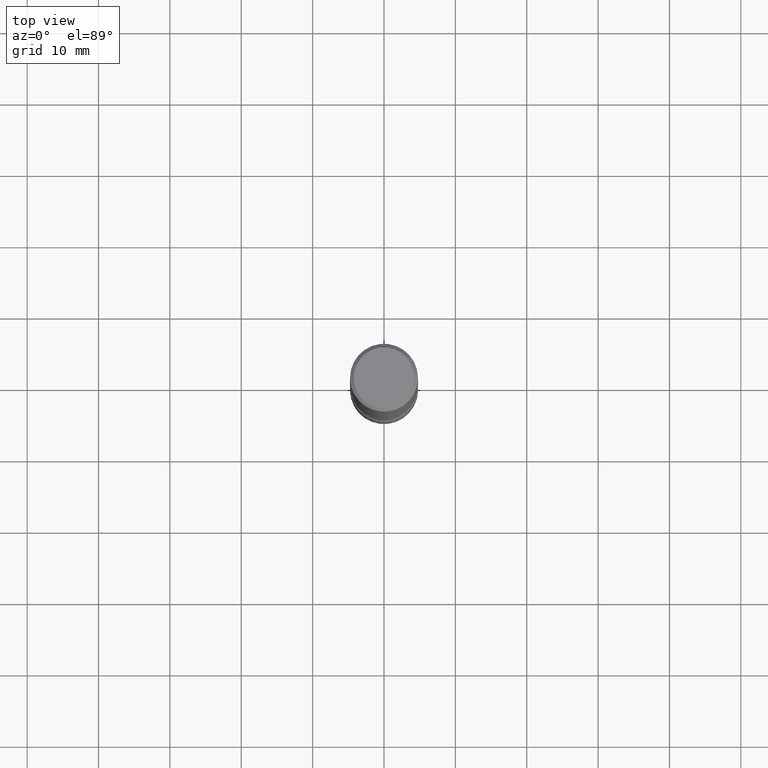
[diagram: clean part render]
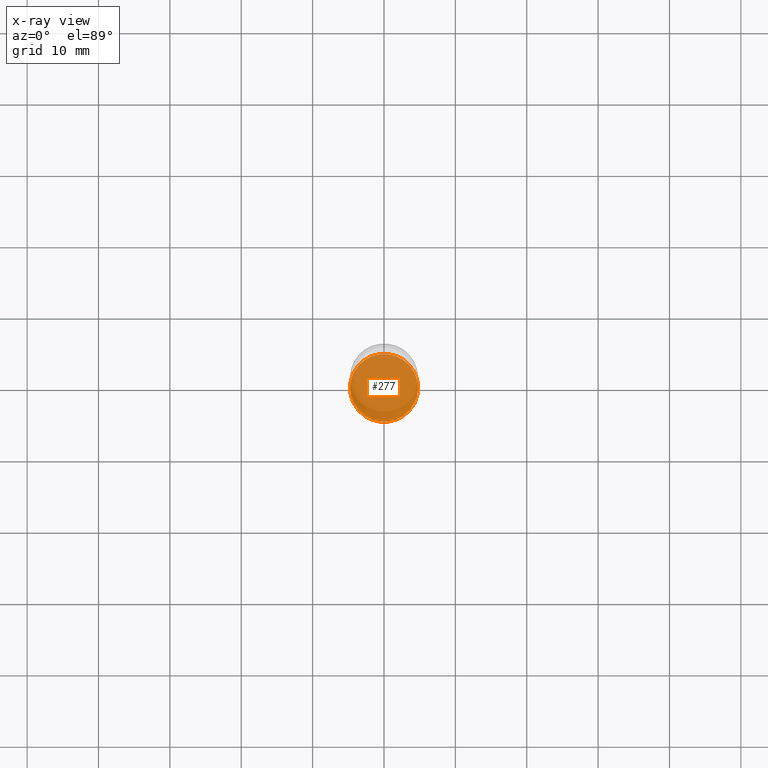
[diagram: x-ray — body ghosted, one internal face saturated and labeled with its STEP entity id]
A machine part, top view, then the same camera in x-ray: the body is ghosted and one INTERNAL B-rep face — a face not visible from any outside direction — is saturated and labeled: STEP entity #277.
In plain terms, the highlighted planar face has unit normal (0, -0, -1).
Its self-contained STEP definition (entity closure, byte-faithful):
#50 = VERTEX_POINT ( 'NONE', #489 ) ;
#52 = EDGE_CURVE ( 'NONE', #265, #50, #198, .T. ) ;
#57 = EDGE_LOOP ( 'NONE', ( #254, #89 ) ) ;
#58 = CARTESIAN_POINT ( 'NONE',  ( 7.947773620101696182E-29, -1.134731435124022600E-14, -3.250000000000000444 ) ) ;
#63 = DIRECTION ( 'NONE',  ( 2.438088387897960049E-29, -3.491481338843145188E-15, -1.000000000000000000 ) ) ;
#73 = CARTESIAN_POINT ( 'NONE',  ( -0.1875000000000000833, -1.121960778359092137E-14, -3.250000000000000444 ) ) ;
#89 = ORIENTED_EDGE ( 'NONE', *, *, #52, .T. ) ;
#105 = FACE_OUTER_BOUND ( 'NONE', #57, .T. ) ;
#115 = DIRECTION ( 'NONE',  ( -2.445468806185136597E-29, 3.491481338843145583E-15, 1.000000000000000000 ) ) ;
#198 = CIRCLE ( 'NONE', #240, 0.1875000000000000833 ) ;
#218 = AXIS2_PLACEMENT_3D ( 'NONE', #550, #115, #552 ) ;
#228 = DIRECTION ( 'NONE',  ( -1.000000000000000000, 6.982962677686265922E-15, -4.876176775795935793E-29 ) ) ;
#234 = EDGE_CURVE ( 'NONE', #50, #265, #252, .T. ) ;
#240 = AXIS2_PLACEMENT_3D ( 'NONE', #58, #269, #402 ) ;
#252 = CIRCLE ( 'NONE', #218, 0.1875000000000000833 ) ;
#254 = ORIENTED_EDGE ( 'NONE', *, *, #234, .T. ) ;
#265 = VERTEX_POINT ( 'NONE', #73 ) ;
#269 = DIRECTION ( 'NONE',  ( -2.445468806185136597E-29, 3.491481338843145583E-15, 1.000000000000000000 ) ) ;
#277 = ADVANCED_FACE ( 'NONE', ( #105 ), #450, .F. ) ;
#402 = DIRECTION ( 'NONE',  ( 1.000000000000000000, -6.982962677686269866E-15, 0.000000000000000000 ) ) ;
#413 = CARTESIAN_POINT ( 'NONE',  ( 7.947773620101696182E-29, -1.134731435124022600E-14, -3.250000000000000444 ) ) ;
#430 = AXIS2_PLACEMENT_3D ( 'NONE', #413, #63, #228 ) ;
#450 = PLANE ( 'NONE',  #430 ) ;
#489 = CARTESIAN_POINT ( 'NONE',  ( 0.1875000000000000833, -1.265661985330640259E-14, -3.250000000000000444 ) ) ;
#550 = CARTESIAN_POINT ( 'NONE',  ( 7.947773620101696182E-29, -1.134731435124022600E-14, -3.250000000000000444 ) ) ;
#552 = DIRECTION ( 'NONE',  ( 1.000000000000000000, -6.982962677686269866E-15, 0.000000000000000000 ) ) ;